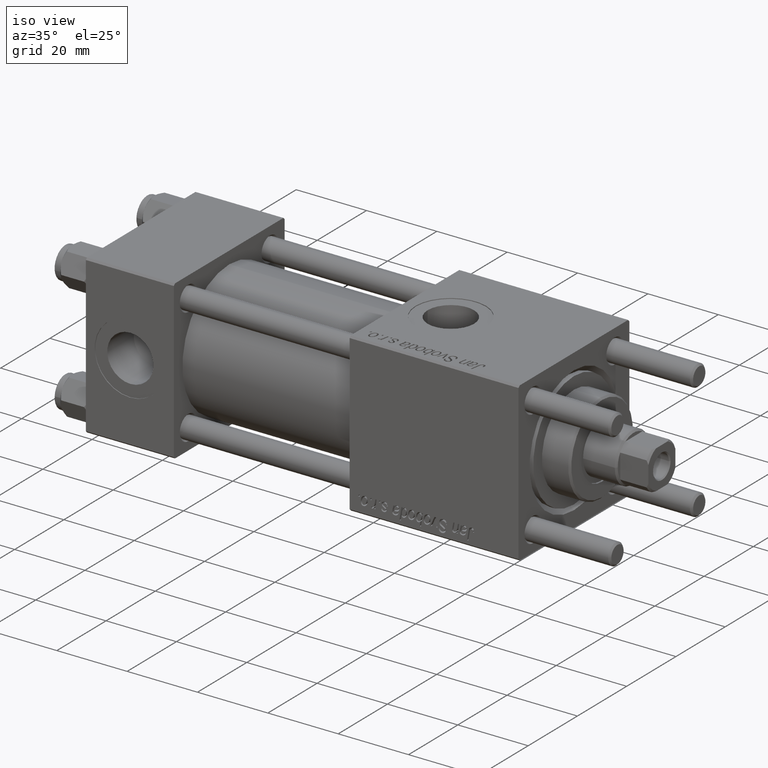
[diagram: clean part render]
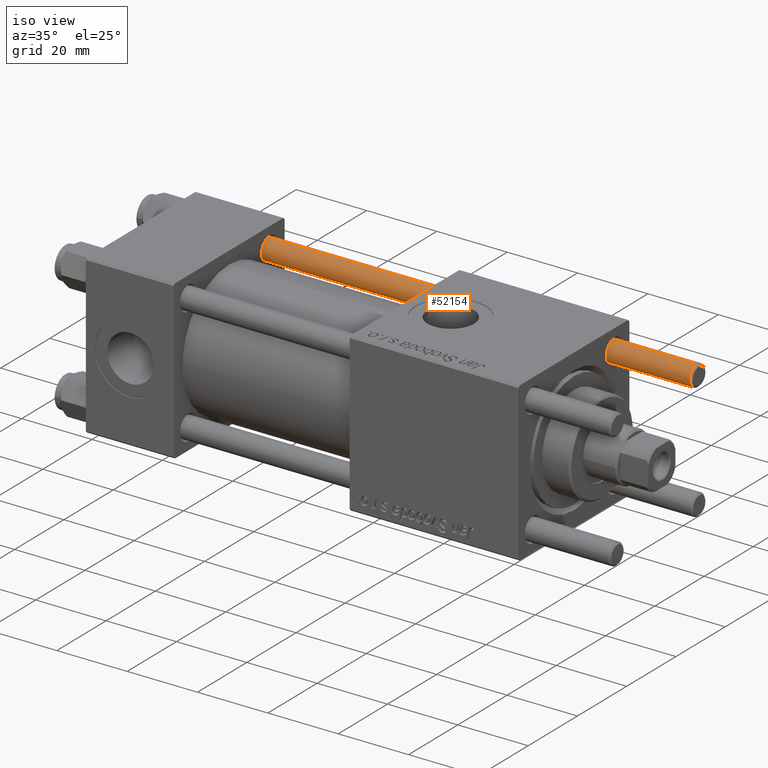
[diagram: same view with one face highlighted and labeled with its STEP entity id]
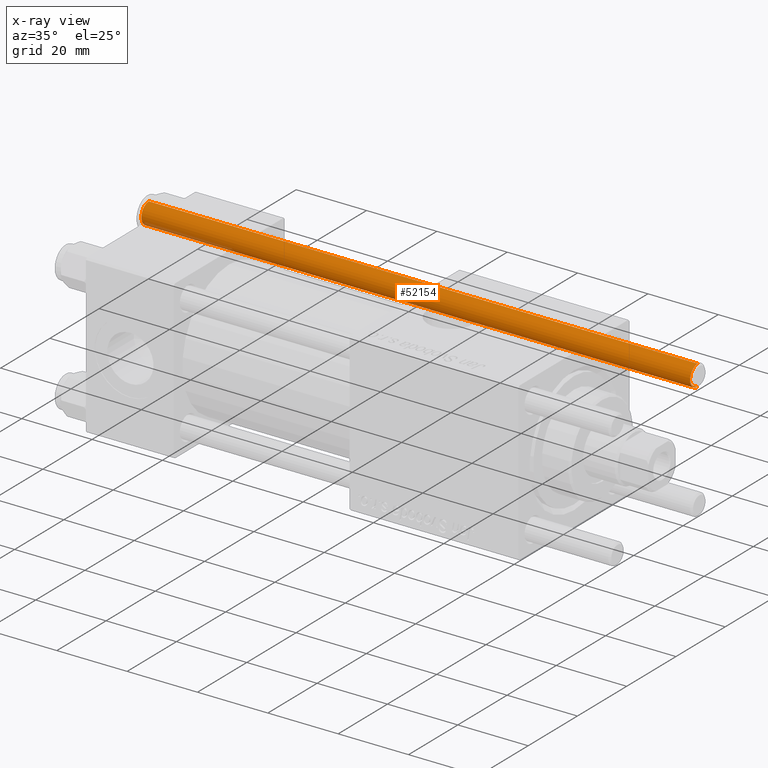
[diagram: x-ray of the same camera — body ghosted, the highlighted face saturated]
A machine part, iso view. The second image highlights one B-rep face of the part: STEP entity #52154.
The next image is the same camera in x-ray: the body ghosted, the highlighted face saturated — about 2% of this face is hidden behind the body in this view.
In plain terms, the highlighted cylindrical surface (edge-blend (fillet) strip) has radius 3 mm, axis along (1, -0, -0).
Its self-contained STEP definition (entity closure, byte-faithful):
#764 = AXIS2_PLACEMENT_3D ( 'NONE', #4668, #22168, #44266 ) ;
#2843 = EDGE_CURVE ( 'NONE', #37395, #39575, #19573, .T. ) ;
#4668 = CARTESIAN_POINT ( 'NONE',  ( 0.000000000000000000, 0.000000000000000000, 157.0000000000000000 ) ) ;
#4947 = CYLINDRICAL_SURFACE ( 'NONE', #764, 3.000000000000000444 ) ;
#5457 = CARTESIAN_POINT ( 'NONE',  ( -3.000000000000000444, 0.000000000000000000, 156.5000000000000284 ) ) ;
#5726 = DIRECTION ( 'NONE',  ( -0.000000000000000000, -0.000000000000000000, 1.000000000000000000 ) ) ;
#6133 = DIRECTION ( 'NONE',  ( -0.000000000000000000, -0.000000000000000000, -1.000000000000000000 ) ) ;
#10709 = LINE ( 'NONE', #24490, #54907 ) ;
#14881 = DIRECTION ( 'NONE',  ( 1.000000000000000000, 0.000000000000000000, 0.000000000000000000 ) ) ;
#17259 = EDGE_CURVE ( 'NONE', #45175, #37395, #46187, .T. ) ;
#17777 = AXIS2_PLACEMENT_3D ( 'NONE', #26931, #39586, #39004 ) ;
#19573 = LINE ( 'NONE', #33054, #38104 ) ;
#22168 = DIRECTION ( 'NONE',  ( -0.000000000000000000, -0.000000000000000000, -1.000000000000000000 ) ) ;
#24359 = CARTESIAN_POINT ( 'NONE',  ( 0.000000000000000000, 0.000000000000000000, 0.4999999999999726885 ) ) ;
#24490 = CARTESIAN_POINT ( 'NONE',  ( 3.000000000000000444, 3.673940397442060361E-16, 157.0000000000000000 ) ) ;
#26213 = EDGE_CURVE ( 'NONE', #39575, #30223, #36311, .T. ) ;
#26245 = ORIENTED_EDGE ( 'NONE', *, *, #17259, .T. ) ;
#26931 = CARTESIAN_POINT ( 'NONE',  ( 0.000000000000000000, 0.000000000000000000, 156.5000000000000284 ) ) ;
#30011 = EDGE_LOOP ( 'NONE', ( #40932, #26245, #50725, #44996 ) ) ;
#30223 = VERTEX_POINT ( 'NONE', #32981 ) ;
#32332 = CARTESIAN_POINT ( 'NONE',  ( 3.000000000000000444, 3.673940397442060361E-16, 156.5000000000000284 ) ) ;
#32981 = CARTESIAN_POINT ( 'NONE',  ( 3.000000000000000444, 3.673940397442060361E-16, 0.4999999999999726885 ) ) ;
#33054 = CARTESIAN_POINT ( 'NONE',  ( -3.000000000000000444, 0.000000000000000000, 157.0000000000000000 ) ) ;
#33569 = AXIS2_PLACEMENT_3D ( 'NONE', #24359, #5726, #14881 ) ;
#36311 = CIRCLE ( 'NONE', #33569, 3.000000000000000444 ) ;
#37070 = DIRECTION ( 'NONE',  ( -0.000000000000000000, -0.000000000000000000, -1.000000000000000000 ) ) ;
#37395 = VERTEX_POINT ( 'NONE', #5457 ) ;
#38104 = VECTOR ( 'NONE', #37070, 1000.000000000000000 ) ;
#39004 = DIRECTION ( 'NONE',  ( 1.000000000000000000, 0.000000000000000000, 0.000000000000000000 ) ) ;
#39575 = VERTEX_POINT ( 'NONE', #49112 ) ;
#39586 = DIRECTION ( 'NONE',  ( 0.000000000000000000, 0.000000000000000000, -1.000000000000000000 ) ) ;
#40932 = ORIENTED_EDGE ( 'NONE', *, *, #50326, .F. ) ;
#43984 = FACE_OUTER_BOUND ( 'NONE', #30011, .T. ) ;
#44266 = DIRECTION ( 'NONE',  ( -1.000000000000000000, 0.000000000000000000, 0.000000000000000000 ) ) ;
#44996 = ORIENTED_EDGE ( 'NONE', *, *, #26213, .T. ) ;
#45175 = VERTEX_POINT ( 'NONE', #32332 ) ;
#46187 = CIRCLE ( 'NONE', #17777, 3.000000000000000444 ) ;
#49112 = CARTESIAN_POINT ( 'NONE',  ( -3.000000000000000444, 0.000000000000000000, 0.4999999999999726885 ) ) ;
#50326 = EDGE_CURVE ( 'NONE', #45175, #30223, #10709, .T. ) ;
#50725 = ORIENTED_EDGE ( 'NONE', *, *, #2843, .T. ) ;
#52154 = ADVANCED_FACE ( 'NONE', ( #43984 ), #4947, .T. ) ;
#54907 = VECTOR ( 'NONE', #6133, 1000.000000000000000 ) ;